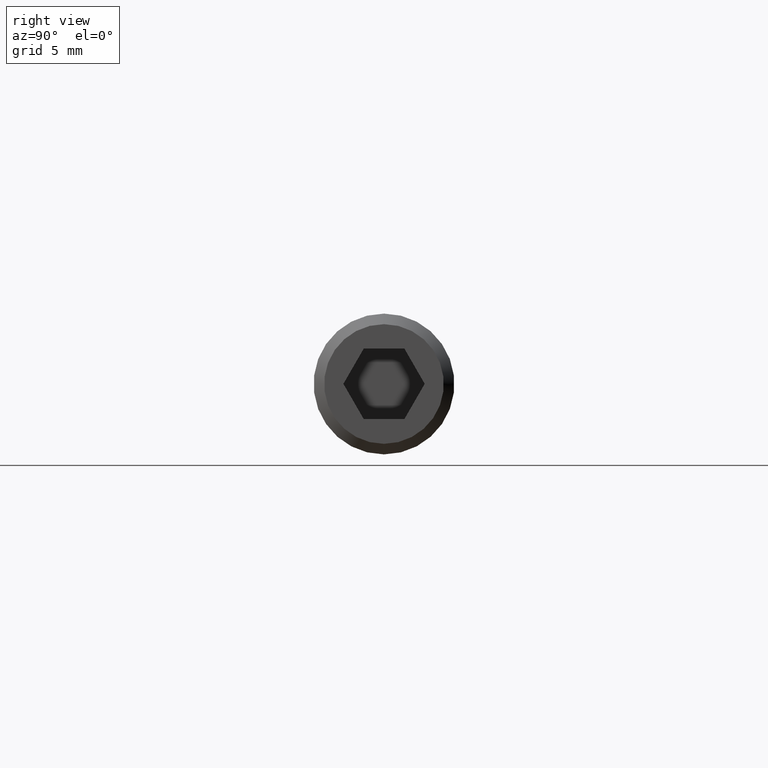
[diagram: clean part render]
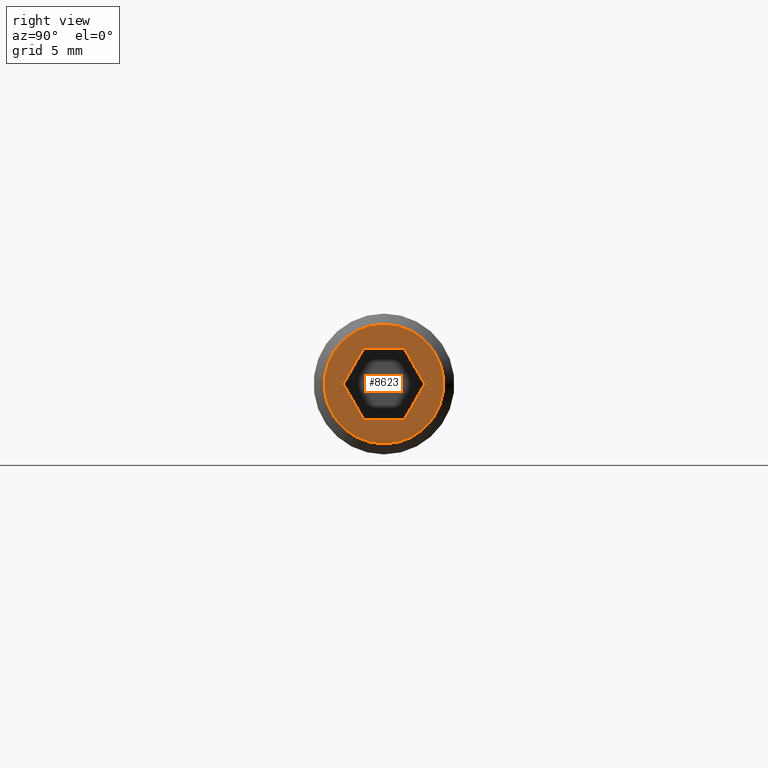
[diagram: same view with one face highlighted and labeled with its STEP entity id]
A machine part, right view. The second image highlights one B-rep face of the part: STEP entity #8623.
In plain terms, the highlighted planar face has unit normal (1, 0, 0).
Its self-contained STEP definition (entity closure, byte-faithful):
#1 = VERTEX_POINT ( 'NONE', #5021 ) ;
#28 = EDGE_CURVE ( 'NONE', #6858, #8857, #8399, .T. ) ;
#337 = CARTESIAN_POINT ( 'NONE',  ( 40.00000000000000000, 0.0000000000000000000, 0.0000000000000000000 ) ) ;
#500 = DIRECTION ( 'NONE',  ( 0.0000000000000000000, 0.4999999999999995600, -0.8660254037844389300 ) ) ;
#541 = CARTESIAN_POINT ( 'NONE',  ( 40.00000000000000000, -1.154700538379251000, 2.000000000000000000 ) ) ;
#688 = DIRECTION ( 'NONE',  ( 1.000000000000000000, 0.0000000000000000000, 0.0000000000000000000 ) ) ;
#790 = LINE ( 'NONE', #7766, #5295 ) ;
#1092 = VECTOR ( 'NONE', #1177, 1000.000000000000000 ) ;
#1177 = DIRECTION ( 'NONE',  ( 0.0000000000000000000, -1.000000000000000000, 0.0000000000000000000 ) ) ;
#1244 = DIRECTION ( 'NONE',  ( 1.000000000000000000, 0.0000000000000000000, 0.0000000000000000000 ) ) ;
#1669 = FACE_BOUND ( 'NONE', #3547, .T. ) ;
#1803 = CARTESIAN_POINT ( 'NONE',  ( 40.00000000000000000, 0.0000000000000000000, -3.399999999999997200 ) ) ;
#1846 = ORIENTED_EDGE ( 'NONE', *, *, #2927, .F. ) ;
#2039 = LINE ( 'NONE', #2280, #10797 ) ;
#2064 = ORIENTED_EDGE ( 'NONE', *, *, #28, .F. ) ;
#2280 = CARTESIAN_POINT ( 'NONE',  ( 40.00000000000000000, -1.154700538379252400, -1.999999999999999600 ) ) ;
#2351 = CARTESIAN_POINT ( 'NONE',  ( 40.00000000000000000, -2.309401076758502500, 4.317532481129756600E-016 ) ) ;
#2643 = EDGE_CURVE ( 'NONE', #6879, #6879, #10655, .T. ) ;
#2808 = FACE_OUTER_BOUND ( 'NONE', #4420, .T. ) ;
#2868 = CARTESIAN_POINT ( 'NONE',  ( 40.00000000000000000, -1.154700538379252400, -1.999999999999999600 ) ) ;
#2927 = EDGE_CURVE ( 'NONE', #8857, #7255, #2039, .T. ) ;
#3100 = DIRECTION ( 'NONE',  ( 0.0000000000000000000, 0.4999999999999999400, 0.8660254037844386000 ) ) ;
#3547 = EDGE_LOOP ( 'NONE', ( #8118, #9481, #9679, #11715, #1846, #2064 ) ) ;
#3975 = DIRECTION ( 'NONE',  ( 0.0000000000000000000, -0.4999999999999997200, 0.8660254037844388200 ) ) ;
#4029 = EDGE_CURVE ( 'NONE', #7394, #6858, #8202, .T. ) ;
#4220 = CARTESIAN_POINT ( 'NONE',  ( 40.00000000000000000, 0.0000000000000000000, 0.0000000000000000000 ) ) ;
#4420 = EDGE_LOOP ( 'NONE', ( #6159 ) ) ;
#4845 = CARTESIAN_POINT ( 'NONE',  ( 40.00000000000000000, 1.154700538379252400, -1.999999999999999600 ) ) ;
#5021 = CARTESIAN_POINT ( 'NONE',  ( 40.00000000000000000, 1.154700538379252100, 2.000000000000000000 ) ) ;
#5295 = VECTOR ( 'NONE', #3100, 1000.000000000000100 ) ;
#5341 = EDGE_CURVE ( 'NONE', #10141, #1, #9507, .T. ) ;
#5421 = LINE ( 'NONE', #11238, #1092 ) ;
#5785 = CARTESIAN_POINT ( 'NONE',  ( 40.00000000000000000, -2.309401076758502900, 2.168404344971008900E-016 ) ) ;
#5991 = VECTOR ( 'NONE', #500, 1000.000000000000000 ) ;
#6159 = ORIENTED_EDGE ( 'NONE', *, *, #2643, .T. ) ;
#6220 = AXIS2_PLACEMENT_3D ( 'NONE', #337, #1244, #8628 ) ;
#6858 = VERTEX_POINT ( 'NONE', #5785 ) ;
#6879 = VERTEX_POINT ( 'NONE', #1803 ) ;
#7255 = VERTEX_POINT ( 'NONE', #4845 ) ;
#7394 = VERTEX_POINT ( 'NONE', #541 ) ;
#7414 = DIRECTION ( 'NONE',  ( 0.0000000000000000000, -0.4999999999999999400, -0.8660254037844386000 ) ) ;
#7766 = CARTESIAN_POINT ( 'NONE',  ( 40.00000000000000000, 1.154700538379252400, -1.999999999999999600 ) ) ;
#8118 = ORIENTED_EDGE ( 'NONE', *, *, #4029, .F. ) ;
#8202 = LINE ( 'NONE', #9301, #9665 ) ;
#8395 = EDGE_CURVE ( 'NONE', #1, #7394, #5421, .T. ) ;
#8399 = LINE ( 'NONE', #2351, #5991 ) ;
#8492 = EDGE_CURVE ( 'NONE', #7255, #10141, #790, .T. ) ;
#8623 = ADVANCED_FACE ( 'NONE', ( #1669, #2808 ), #10606, .T. ) ;
#8628 = DIRECTION ( 'NONE',  ( 0.0000000000000000000, 0.0000000000000000000, -1.000000000000000000 ) ) ;
#8823 = DIRECTION ( 'NONE',  ( 0.0000000000000000000, 0.0000000000000000000, -1.000000000000000000 ) ) ;
#8857 = VERTEX_POINT ( 'NONE', #2868 ) ;
#9037 = CARTESIAN_POINT ( 'NONE',  ( 40.00000000000000000, 2.309401076758503400, -8.844675031407550400E-016 ) ) ;
#9058 = VECTOR ( 'NONE', #3975, 1000.000000000000000 ) ;
#9300 = AXIS2_PLACEMENT_3D ( 'NONE', #4220, #688, #8823 ) ;
#9301 = CARTESIAN_POINT ( 'NONE',  ( 40.00000000000000000, -1.154700538379251000, 2.000000000000000000 ) ) ;
#9386 = CARTESIAN_POINT ( 'NONE',  ( 40.00000000000000000, 2.309401076758503400, -8.844675031407550400E-016 ) ) ;
#9481 = ORIENTED_EDGE ( 'NONE', *, *, #8395, .F. ) ;
#9507 = LINE ( 'NONE', #9386, #9058 ) ;
#9665 = VECTOR ( 'NONE', #7414, 1000.000000000000100 ) ;
#9679 = ORIENTED_EDGE ( 'NONE', *, *, #5341, .F. ) ;
#9967 = DIRECTION ( 'NONE',  ( 0.0000000000000000000, 1.000000000000000000, 0.0000000000000000000 ) ) ;
#10141 = VERTEX_POINT ( 'NONE', #9037 ) ;
#10606 = PLANE ( 'NONE',  #9300 ) ;
#10655 = CIRCLE ( 'NONE', #6220, 3.399999999999997200 ) ;
#10797 = VECTOR ( 'NONE', #9967, 1000.000000000000000 ) ;
#11238 = CARTESIAN_POINT ( 'NONE',  ( 40.00000000000000000, 1.154700538379252100, 2.000000000000000000 ) ) ;
#11715 = ORIENTED_EDGE ( 'NONE', *, *, #8492, .F. ) ;